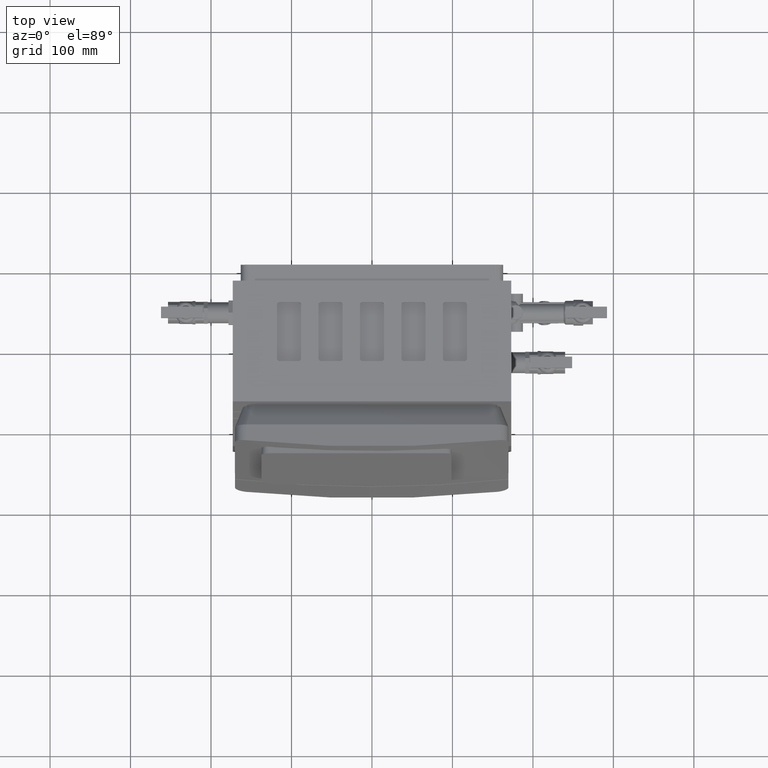
[diagram: clean part render]
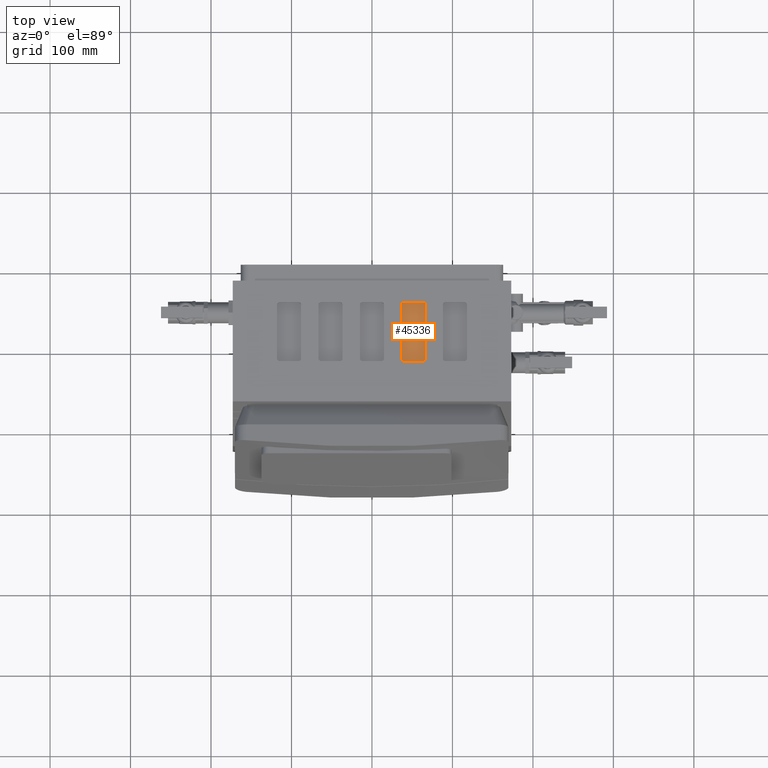
[diagram: same view with one face highlighted and labeled with its STEP entity id]
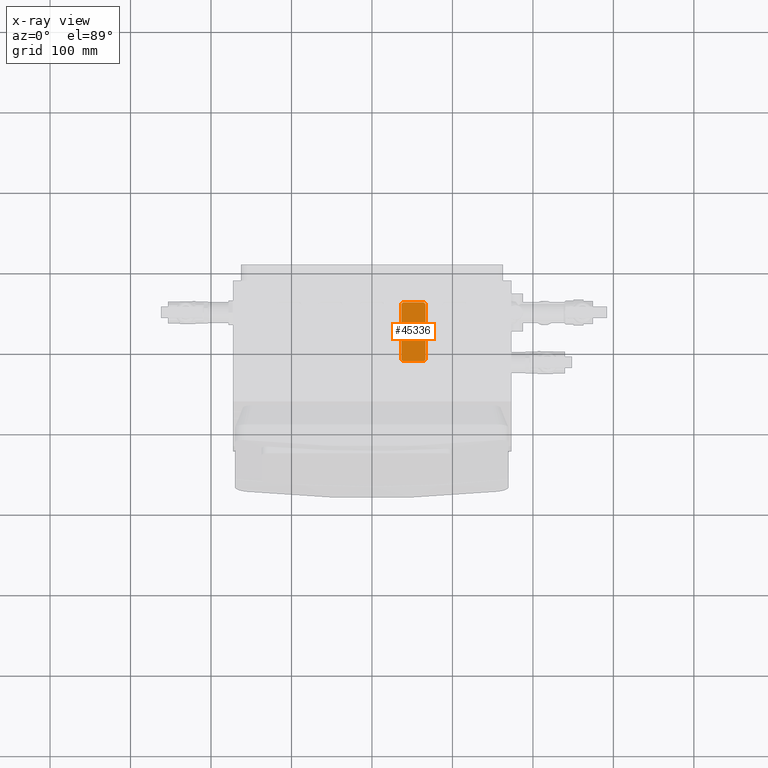
[diagram: x-ray of the same camera — body ghosted, the highlighted face saturated]
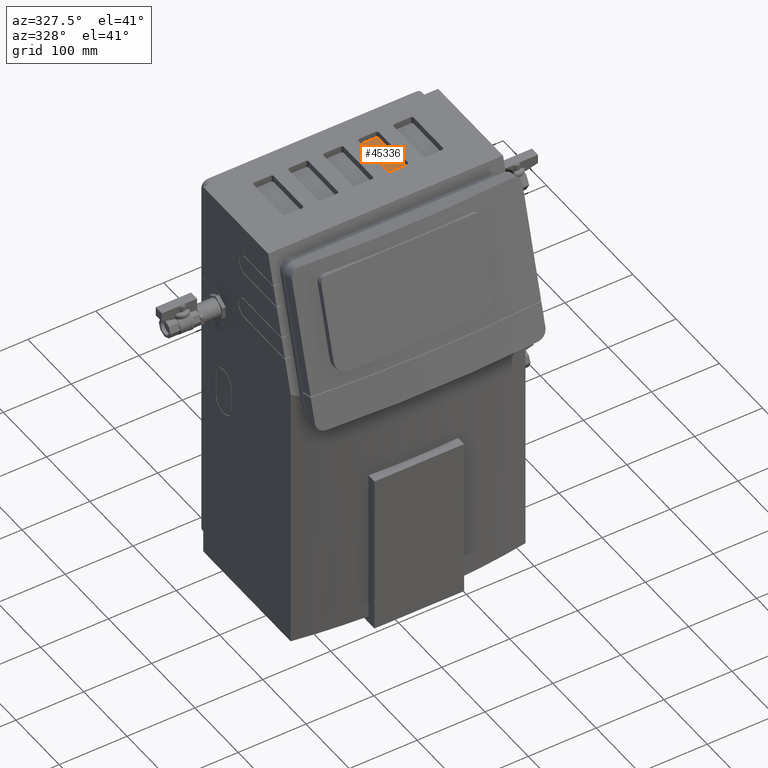
[diagram: same view with one face highlighted and labeled with its STEP entity id]
A machine part, top view. The second image highlights one B-rep face of the part: STEP entity #45336.
The next image is the same camera in x-ray: the body ghosted, the highlighted face saturated — about 0% of this face is hidden behind the body in this view.
A second angle (auxiliary view) of the same face is appended — the face is thin or edge-on in the first view.
In plain terms, the highlighted planar face has unit normal (0, 0, 1).
Its self-contained STEP definition (entity closure, byte-faithful):
#45080=CARTESIAN_POINT('',(66.500000047499725,-49.999999999970839,2.643219E-010));
#45081=VERTEX_POINT('',#45080);
#45088=CARTESIAN_POINT('',(66.500000047499725,-116.99999999997084,2.643219E-010));
#45089=VERTEX_POINT('',#45088);
#45090=CARTESIAN_POINT('',(66.500000047499725,-116.99999999997084,2.643219E-010));
#45091=DIRECTION('',(0.0,1.0,0.0));
#45092=VECTOR('',#45091,67.0);
#45093=LINE('',#45090,#45092);
#45094=EDGE_CURVE('',#45089,#45081,#45093,.T.);
#45120=CARTESIAN_POINT('',(63.500000047499725,-119.99999999997084,2.643219E-010));
#45121=VERTEX_POINT('',#45120);
#45122=CARTESIAN_POINT('',(63.500000047499725,-116.99999999997084,2.643219E-010));
#45123=DIRECTION('',(0.0,0.0,1.0));
#45124=DIRECTION('',(0.707106781186548,-0.707106781186548,0.0));
#45125=AXIS2_PLACEMENT_3D('',#45122,#45123,#45124);
#45126=CIRCLE('',#45125,3.0);
#45127=EDGE_CURVE('',#45121,#45089,#45126,.T.);
#45152=CARTESIAN_POINT('',(39.500000047499725,-119.99999999997084,2.643219E-010));
#45153=VERTEX_POINT('',#45152);
#45154=CARTESIAN_POINT('',(39.500000047499725,-119.99999999997084,2.643219E-010));
#45155=DIRECTION('',(1.0,0.0,0.0));
#45156=VECTOR('',#45155,24.0);
#45157=LINE('',#45154,#45156);
#45158=EDGE_CURVE('',#45153,#45121,#45157,.T.);
#45184=CARTESIAN_POINT('',(36.500000047499725,-116.99999999997084,2.643219E-010));
#45185=VERTEX_POINT('',#45184);
#45186=CARTESIAN_POINT('',(39.500000047499725,-116.99999999997084,2.643219E-010));
#45187=DIRECTION('',(0.0,0.0,1.0));
#45188=DIRECTION('',(-0.707106781186548,-0.707106781186548,0.0));
#45189=AXIS2_PLACEMENT_3D('',#45186,#45187,#45188);
#45190=CIRCLE('',#45189,3.0);
#45191=EDGE_CURVE('',#45185,#45153,#45190,.T.);
#45216=CARTESIAN_POINT('',(36.500000047499725,-49.999999999970839,2.643219E-010));
#45217=VERTEX_POINT('',#45216);
#45218=CARTESIAN_POINT('',(36.500000047499725,-49.999999999970839,2.643219E-010));
#45219=DIRECTION('',(0.0,-1.0,0.0));
#45220=VECTOR('',#45219,67.0);
#45221=LINE('',#45218,#45220);
#45222=EDGE_CURVE('',#45217,#45185,#45221,.T.);
#45248=CARTESIAN_POINT('',(39.500000047499725,-46.999999999970839,2.643219E-010));
#45249=VERTEX_POINT('',#45248);
#45250=CARTESIAN_POINT('',(39.500000047499725,-49.999999999970839,2.643219E-010));
#45251=DIRECTION('',(0.0,0.0,1.0));
#45252=DIRECTION('',(-0.707106781186548,0.707106781186548,0.0));
#45253=AXIS2_PLACEMENT_3D('',#45250,#45251,#45252);
#45254=CIRCLE('',#45253,3.0);
#45255=EDGE_CURVE('',#45249,#45217,#45254,.T.);
#45280=CARTESIAN_POINT('',(63.500000047499725,-46.999999999970839,2.643219E-010));
#45281=VERTEX_POINT('',#45280);
#45282=CARTESIAN_POINT('',(63.500000047499725,-46.999999999970839,2.643219E-010));
#45283=DIRECTION('',(-1.0,0.0,0.0));
#45284=VECTOR('',#45283,24.0);
#45285=LINE('',#45282,#45284);
#45286=EDGE_CURVE('',#45281,#45249,#45285,.T.);
#45310=CARTESIAN_POINT('',(63.500000047499725,-49.999999999970839,2.643219E-010));
#45311=DIRECTION('',(0.0,0.0,1.0));
#45312=DIRECTION('',(0.707106781186548,0.707106781186548,0.0));
#45313=AXIS2_PLACEMENT_3D('',#45310,#45311,#45312);
#45314=CIRCLE('',#45313,3.0);
#45315=EDGE_CURVE('',#45081,#45281,#45314,.T.);
#45321=CARTESIAN_POINT('',(51.500000047499725,-83.499999999970385,2.640945E-010));
#45322=DIRECTION('',(0.0,0.0,1.0));
#45323=DIRECTION('',(1.0,0.0,0.0));
#45324=AXIS2_PLACEMENT_3D('',#45321,#45322,#45323);
#45325=PLANE('',#45324);
#45326=ORIENTED_EDGE('',*,*,#45315,.T.);
#45327=ORIENTED_EDGE('',*,*,#45286,.T.);
#45328=ORIENTED_EDGE('',*,*,#45255,.T.);
#45329=ORIENTED_EDGE('',*,*,#45222,.T.);
#45330=ORIENTED_EDGE('',*,*,#45191,.T.);
#45331=ORIENTED_EDGE('',*,*,#45158,.T.);
#45332=ORIENTED_EDGE('',*,*,#45127,.T.);
#45333=ORIENTED_EDGE('',*,*,#45094,.T.);
#45334=EDGE_LOOP('',(#45326,#45327,#45328,#45329,#45330,#45331,#45332,#45333));
#45335=FACE_OUTER_BOUND('',#45334,.T.);
#45336=ADVANCED_FACE('',(#45335),#45325,.T.);